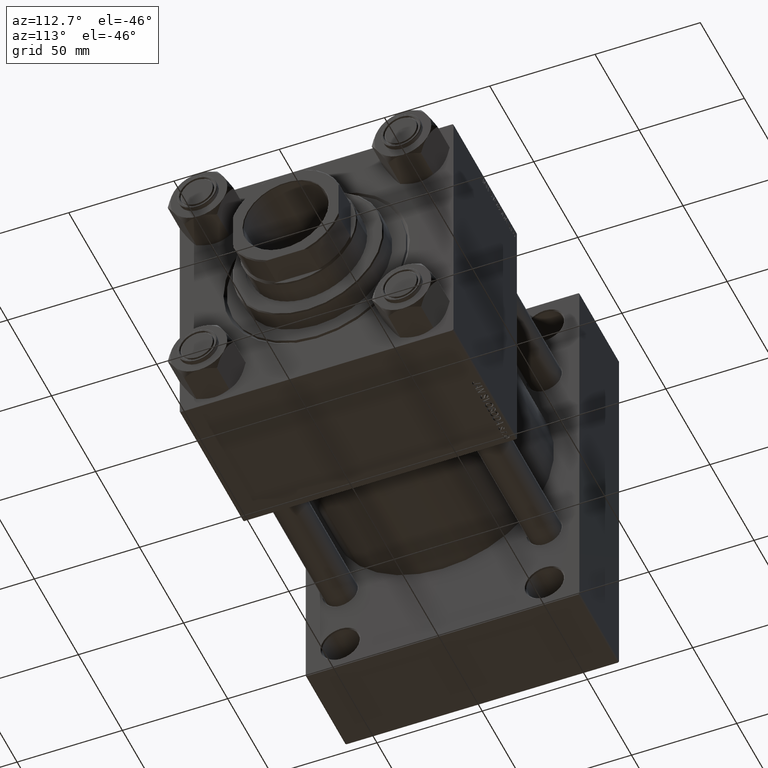
[diagram: clean part render]
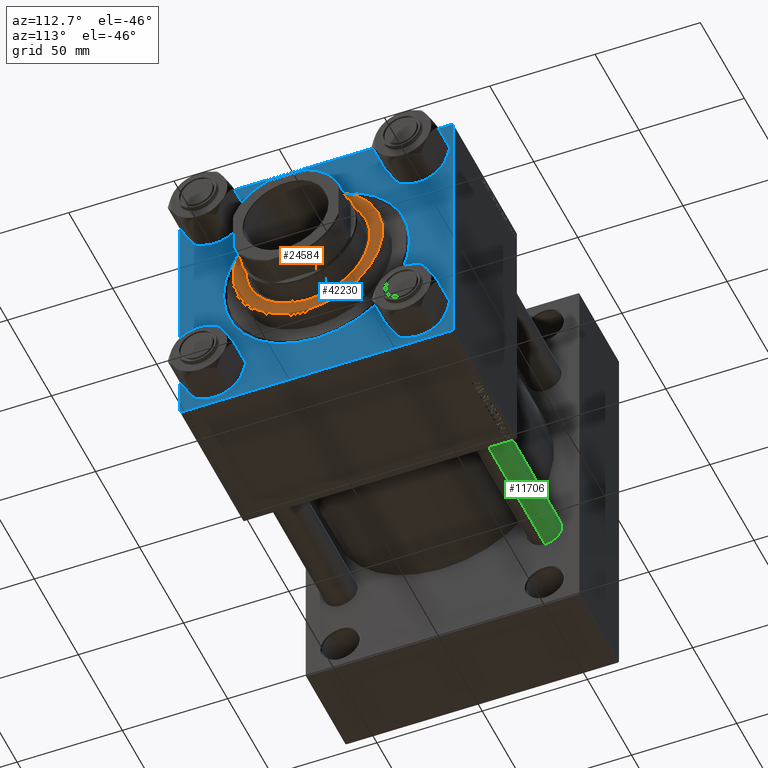
[diagram: same view with three faces highlighted in distinct colors, each labeled with its STEP entity id]
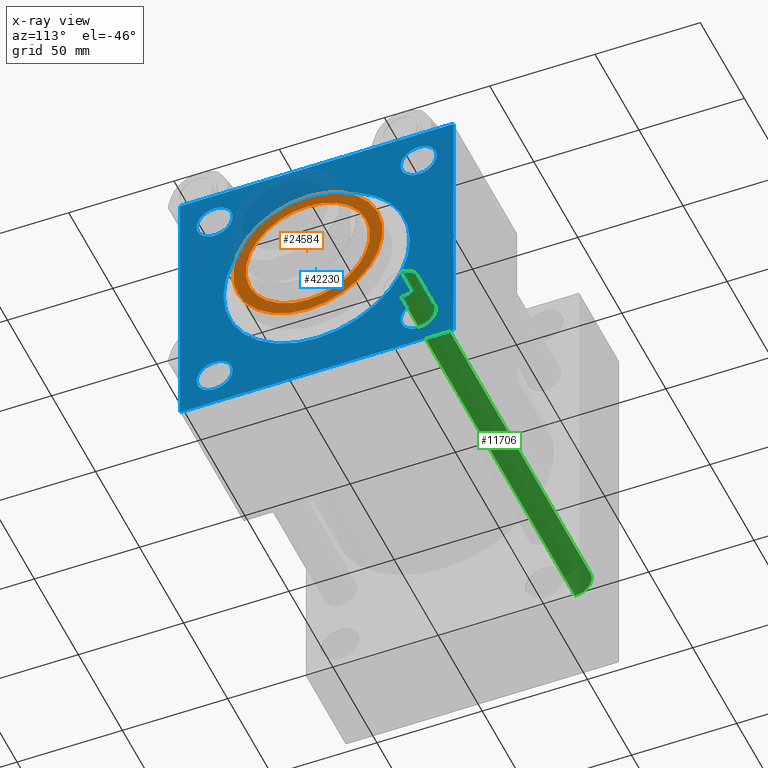
[diagram: x-ray of the same camera — body ghosted, the three highlighted faces saturated]
A machine part, auxiliary view with three faces highlighted in distinct colors.
The next image is the same camera in x-ray (body ghosted, the three faces saturated) — at least one of them is partly hidden behind the body in this view.
Their STEP definitions:

[orange] entity #24584 — the highlighted planar face has unit normal (1, 0, 0).
#1363 = EDGE_LOOP ( 'NONE', ( #15188, #34624 ) ) ;
#3300 = CARTESIAN_POINT ( 'NONE',  ( 0.000000000000000000, 0.000000000000000000, 38.69999999999999574 ) ) ;
#3897 = VERTEX_POINT ( 'NONE', #37579 ) ;
#4317 = CARTESIAN_POINT ( 'NONE',  ( 0.000000000000000000, 0.000000000000000000, 38.69999999999999574 ) ) ;
#7691 = CIRCLE ( 'NONE', #15857, 29.50000000000000355 ) ;
#8905 = DIRECTION ( 'NONE',  ( 1.000000000000000000, 0.000000000000000000, -0.000000000000000000 ) ) ;
#10899 = DIRECTION ( 'NONE',  ( 1.000000000000000000, 0.000000000000000000, 0.000000000000000000 ) ) ;
#11450 = CIRCLE ( 'NONE', #14770, 35.49999999999999289 ) ;
#13091 = CARTESIAN_POINT ( 'NONE',  ( 29.50000000000000355, 0.000000000000000000, 38.69999999999999574 ) ) ;
#13244 = FACE_BOUND ( 'NONE', #1363, .T. ) ;
#14224 = DIRECTION ( 'NONE',  ( 0.000000000000000000, 0.000000000000000000, 1.000000000000000000 ) ) ;
#14770 = AXIS2_PLACEMENT_3D ( 'NONE', #21389, #48961, #41015 ) ;
#15188 = ORIENTED_EDGE ( 'NONE', *, *, #46221, .F. ) ;
#15857 = AXIS2_PLACEMENT_3D ( 'NONE', #33640, #14224, #10899 ) ;
#18966 = EDGE_CURVE ( 'NONE', #35956, #19956, #25681, .T. ) ;
#19361 = AXIS2_PLACEMENT_3D ( 'NONE', #4317, #43390, #8905 ) ;
#19956 = VERTEX_POINT ( 'NONE', #13091 ) ;
#21389 = CARTESIAN_POINT ( 'NONE',  ( 0.000000000000000000, 0.000000000000000000, 38.69999999999999574 ) ) ;
#21793 = CIRCLE ( 'NONE', #40610, 35.49999999999999289 ) ;
#22110 = DIRECTION ( 'NONE',  ( 0.000000000000000000, 0.000000000000000000, 1.000000000000000000 ) ) ;
#23216 = AXIS2_PLACEMENT_3D ( 'NONE', #41490, #22110, #38182 ) ;
#24584 = ADVANCED_FACE ( 'NONE', ( #13244, #32648 ), #39297, .T. ) ;
#25681 = CIRCLE ( 'NONE', #23216, 29.50000000000000355 ) ;
#27527 = EDGE_CURVE ( 'NONE', #28118, #3897, #21793, .T. ) ;
#28118 = VERTEX_POINT ( 'NONE', #34092 ) ;
#30264 = ORIENTED_EDGE ( 'NONE', *, *, #27527, .T. ) ;
#32648 = FACE_OUTER_BOUND ( 'NONE', #42636, .T. ) ;
#33640 = CARTESIAN_POINT ( 'NONE',  ( 0.000000000000000000, 0.000000000000000000, 38.69999999999999574 ) ) ;
#34092 = CARTESIAN_POINT ( 'NONE',  ( -35.49999999999999289, 0.000000000000000000, 38.69999999999999574 ) ) ;
#34624 = ORIENTED_EDGE ( 'NONE', *, *, #18966, .F. ) ;
#35956 = VERTEX_POINT ( 'NONE', #46050 ) ;
#36075 = ORIENTED_EDGE ( 'NONE', *, *, #37435, .T. ) ;
#37435 = EDGE_CURVE ( 'NONE', #3897, #28118, #11450, .T. ) ;
#37579 = CARTESIAN_POINT ( 'NONE',  ( 35.49999999999999289, 4.378112306951787069E-15, 38.69999999999999574 ) ) ;
#38182 = DIRECTION ( 'NONE',  ( 1.000000000000000000, 0.000000000000000000, 0.000000000000000000 ) ) ;
#39297 = PLANE ( 'NONE',  #19361 ) ;
#40610 = AXIS2_PLACEMENT_3D ( 'NONE', #3300, #50300, #45955 ) ;
#41015 = DIRECTION ( 'NONE',  ( 1.000000000000000000, 0.000000000000000000, 0.000000000000000000 ) ) ;
#41490 = CARTESIAN_POINT ( 'NONE',  ( 0.000000000000000000, 0.000000000000000000, 38.69999999999999574 ) ) ;
#42636 = EDGE_LOOP ( 'NONE', ( #30264, #36075 ) ) ;
#43390 = DIRECTION ( 'NONE',  ( 0.000000000000000000, 0.000000000000000000, 1.000000000000000000 ) ) ;
#45955 = DIRECTION ( 'NONE',  ( 1.000000000000000000, 0.000000000000000000, 0.000000000000000000 ) ) ;
#46050 = CARTESIAN_POINT ( 'NONE',  ( -29.50000000000000355, 3.612708057484692393E-15, 38.69999999999999574 ) ) ;
#46221 = EDGE_CURVE ( 'NONE', #19956, #35956, #7691, .T. ) ;
#48961 = DIRECTION ( 'NONE',  ( 0.000000000000000000, 0.000000000000000000, 1.000000000000000000 ) ) ;
#50300 = DIRECTION ( 'NONE',  ( 0.000000000000000000, 0.000000000000000000, 1.000000000000000000 ) ) ;

[blue] entity #42230 — the highlighted planar face has unit normal (-1, 0, 0).
#285 = AXIS2_PLACEMENT_3D ( 'NONE', #41793, #18070, #34398 ) ;
#1060 = AXIS2_PLACEMENT_3D ( 'NONE', #40729, #10082, #37415 ) ;
#2303 = ORIENTED_EDGE ( 'NONE', *, *, #29900, .T. ) ;
#2640 = VERTEX_POINT ( 'NONE', #16012 ) ;
#3147 = AXIS2_PLACEMENT_3D ( 'NONE', #33049, #48640, #25646 ) ;
#3587 = CARTESIAN_POINT ( 'NONE',  ( 188.0000000000000000, 64.50000000000005684, 65.00000000000001421 ) ) ;
#5193 = EDGE_CURVE ( 'NONE', #40763, #6423, #37722, .T. ) ;
#5201 = LINE ( 'NONE', #20308, #21060 ) ;
#5268 = CARTESIAN_POINT ( 'NONE',  ( 188.0000000000000000, 0.000000000000000000, 0.000000000000000000 ) ) ;
#5406 = VECTOR ( 'NONE', #47872, 999.9999999999998863 ) ;
#5477 = CIRCLE ( 'NONE', #21809, 44.25000000000006395 ) ;
#5549 = EDGE_CURVE ( 'NONE', #44247, #46224, #50132, .T. ) ;
#5641 = ORIENTED_EDGE ( 'NONE', *, *, #44129, .T. ) ;
#6307 = CIRCLE ( 'NONE', #27500, 8.500000000000035527 ) ;
#6423 = VERTEX_POINT ( 'NONE', #35667 ) ;
#7155 = VECTOR ( 'NONE', #31180, 1000.000000000000114 ) ;
#8288 = LINE ( 'NONE', #15698, #28538 ) ;
#8843 = EDGE_CURVE ( 'NONE', #24665, #43722, #45225, .T. ) ;
#8942 = EDGE_CURVE ( 'NONE', #50255, #17244, #49321, .T. ) ;
#9063 = CARTESIAN_POINT ( 'NONE',  ( 188.0000000000000000, 65.00000000000002842, -64.49999999999992895 ) ) ;
#9342 = CARTESIAN_POINT ( 'NONE',  ( 188.0000000000000000, 65.00000000000002842, 64.50000000000004263 ) ) ;
#9619 = DIRECTION ( 'NONE',  ( -0.000000000000000000, 0.000000000000000000, 1.000000000000000000 ) ) ;
#9905 = VECTOR ( 'NONE', #17996, 1000.000000000000000 ) ;
#10082 = DIRECTION ( 'NONE',  ( -1.000000000000000000, 0.000000000000000000, -0.000000000000000000 ) ) ;
#10142 = CARTESIAN_POINT ( 'NONE',  ( 188.0000000000000000, 0.000000000000000000, -44.25000000000006395 ) ) ;
#10256 = DIRECTION ( 'NONE',  ( -1.000000000000000000, 0.000000000000000000, -0.000000000000000000 ) ) ;
#10646 = CARTESIAN_POINT ( 'NONE',  ( 188.0000000000000000, -48.44999999999999574, -39.94999999999999574 ) ) ;
#10756 = LINE ( 'NONE', #23531, #7155 ) ;
#11391 = DIRECTION ( 'NONE',  ( -1.000000000000000000, 0.000000000000000000, -0.000000000000000000 ) ) ;
#12059 = VERTEX_POINT ( 'NONE', #9342 ) ;
#12235 = VERTEX_POINT ( 'NONE', #45351 ) ;
#12527 = VERTEX_POINT ( 'NONE', #21303 ) ;
#12761 = LINE ( 'NONE', #44676, #18982 ) ;
#13294 = EDGE_CURVE ( 'NONE', #25260, #12527, #28454, .T. ) ;
#13374 = DIRECTION ( 'NONE',  ( -1.000000000000000000, 0.000000000000000000, -0.000000000000000000 ) ) ;
#13904 = CARTESIAN_POINT ( 'NONE',  ( 188.0000000000000000, -64.99999999999998579, 65.00000000000000000 ) ) ;
#15310 = ORIENTED_EDGE ( 'NONE', *, *, #5549, .T. ) ;
#15352 = VERTEX_POINT ( 'NONE', #47648 ) ;
#15554 = EDGE_CURVE ( 'NONE', #15352, #20175, #5477, .T. ) ;
#15698 = CARTESIAN_POINT ( 'NONE',  ( 188.0000000000000000, 65.00000000000002842, 65.00000000000001421 ) ) ;
#16009 = CARTESIAN_POINT ( 'NONE',  ( 188.0000000000000000, 48.45000000000000995, 48.45000000000001705 ) ) ;
#16012 = CARTESIAN_POINT ( 'NONE',  ( 188.0000000000000000, -48.44999999999999574, 39.94999999999999574 ) ) ;
#16054 = EDGE_CURVE ( 'NONE', #44194, #2640, #46429, .T. ) ;
#16574 = VECTOR ( 'NONE', #33902, 1000.000000000000000 ) ;
#16821 = ORIENTED_EDGE ( 'NONE', *, *, #8942, .T. ) ;
#17244 = VERTEX_POINT ( 'NONE', #40904 ) ;
#17996 = DIRECTION ( 'NONE',  ( 0.000000000000000000, 0.000000000000000000, -1.000000000000000000 ) ) ;
#18012 = ORIENTED_EDGE ( 'NONE', *, *, #5193, .T. ) ;
#18055 = CARTESIAN_POINT ( 'NONE',  ( 188.0000000000000000, -48.44999999999999574, 56.95000000000005969 ) ) ;
#18070 = DIRECTION ( 'NONE',  ( -1.000000000000000000, 0.000000000000000000, -0.000000000000000000 ) ) ;
#18880 = ORIENTED_EDGE ( 'NONE', *, *, #8843, .T. ) ;
#18982 = VECTOR ( 'NONE', #48004, 1000.000000000000000 ) ;
#20175 = VERTEX_POINT ( 'NONE', #10142 ) ;
#20308 = CARTESIAN_POINT ( 'NONE',  ( 188.0000000000000000, 65.00000000000002842, 65.00000000000001421 ) ) ;
#21060 = VECTOR ( 'NONE', #28455, 1000.000000000000000 ) ;
#21303 = CARTESIAN_POINT ( 'NONE',  ( 188.0000000000000000, -64.99999999999998579, 64.49999999999997158 ) ) ;
#21434 = ORIENTED_EDGE ( 'NONE', *, *, #37208, .T. ) ;
#21809 = AXIS2_PLACEMENT_3D ( 'NONE', #23364, #35331, #47341 ) ;
#22439 = ORIENTED_EDGE ( 'NONE', *, *, #46160, .T. ) ;
#22948 = AXIS2_PLACEMENT_3D ( 'NONE', #5268, #32602, #9619 ) ;
#22962 = DIRECTION ( 'NONE',  ( 0.000000000000000000, -0.7071067811865474617, 0.7071067811865474617 ) ) ;
#23225 = AXIS2_PLACEMENT_3D ( 'NONE', #16009, #39982, #47173 ) ;
#23364 = CARTESIAN_POINT ( 'NONE',  ( 188.0000000000000000, 0.000000000000000000, 0.000000000000000000 ) ) ;
#23531 = CARTESIAN_POINT ( 'NONE',  ( 188.0000000000000000, 65.00000000000002842, -64.49999999999992895 ) ) ;
#23710 = VECTOR ( 'NONE', #22962, 1000.000000000000114 ) ;
#23711 = LINE ( 'NONE', #46948, #23710 ) ;
#23899 = CARTESIAN_POINT ( 'NONE',  ( 188.0000000000000000, -64.99999999999998579, -64.49999999999997158 ) ) ;
#24556 = ORIENTED_EDGE ( 'NONE', *, *, #25251, .T. ) ;
#24665 = VERTEX_POINT ( 'NONE', #29326 ) ;
#24698 = FACE_BOUND ( 'NONE', #50367, .T. ) ;
#25099 = DIRECTION ( 'NONE',  ( 0.000000000000000000, 0.000000000000000000, 1.000000000000000000 ) ) ;
#25251 = EDGE_CURVE ( 'NONE', #2640, #44194, #6307, .T. ) ;
#25260 = VERTEX_POINT ( 'NONE', #40685 ) ;
#25646 = DIRECTION ( 'NONE',  ( 0.000000000000000000, 0.000000000000000000, 1.000000000000000000 ) ) ;
#26022 = ORIENTED_EDGE ( 'NONE', *, *, #16054, .T. ) ;
#26739 = CARTESIAN_POINT ( 'NONE',  ( 188.0000000000000000, 48.45000000000000995, -39.94999999999998153 ) ) ;
#26975 = DIRECTION ( 'NONE',  ( 0.000000000000000000, 0.000000000000000000, 1.000000000000000000 ) ) ;
#27362 = EDGE_LOOP ( 'NONE', ( #38664, #39784 ) ) ;
#27500 = AXIS2_PLACEMENT_3D ( 'NONE', #33291, #13374, #28950 ) ;
#28454 = LINE ( 'NONE', #36367, #5406 ) ;
#28455 = DIRECTION ( 'NONE',  ( 0.000000000000000000, -1.000000000000000000, -1.067522139062650425E-16 ) ) ;
#28517 = FACE_BOUND ( 'NONE', #49450, .T. ) ;
#28538 = VECTOR ( 'NONE', #35606, 1000.000000000000000 ) ;
#28950 = DIRECTION ( 'NONE',  ( 0.000000000000000000, 0.000000000000000000, 1.000000000000000000 ) ) ;
#29326 = CARTESIAN_POINT ( 'NONE',  ( 188.0000000000000000, 48.45000000000000995, -56.95000000000005258 ) ) ;
#29900 = EDGE_CURVE ( 'NONE', #12235, #45498, #10756, .T. ) ;
#31064 = AXIS2_PLACEMENT_3D ( 'NONE', #33502, #10256, #25099 ) ;
#31116 = EDGE_CURVE ( 'NONE', #49954, #25260, #5201, .T. ) ;
#31180 = DIRECTION ( 'NONE',  ( -0.000000000000000000, 0.7071067811865474617, 0.7071067811865474617 ) ) ;
#31284 = EDGE_LOOP ( 'NONE', ( #22439, #16821 ) ) ;
#32045 = ORIENTED_EDGE ( 'NONE', *, *, #38013, .T. ) ;
#32167 = AXIS2_PLACEMENT_3D ( 'NONE', #38996, #33917, #37994 ) ;
#32244 = EDGE_CURVE ( 'NONE', #43722, #24665, #49644, .T. ) ;
#32602 = DIRECTION ( 'NONE',  ( -1.000000000000000000, 0.000000000000000000, -0.000000000000000000 ) ) ;
#33049 = CARTESIAN_POINT ( 'NONE',  ( 188.0000000000000000, 48.45000000000000995, -48.45000000000001705 ) ) ;
#33291 = CARTESIAN_POINT ( 'NONE',  ( 188.0000000000000000, -48.44999999999999574, 48.45000000000003126 ) ) ;
#33502 = CARTESIAN_POINT ( 'NONE',  ( 188.0000000000000000, -48.44999999999999574, -48.45000000000003126 ) ) ;
#33902 = DIRECTION ( 'NONE',  ( 0.000000000000000000, 0.7071067811865672237, -0.7071067811865279218 ) ) ;
#33917 = DIRECTION ( 'NONE',  ( -1.000000000000000000, 0.000000000000000000, -0.000000000000000000 ) ) ;
#34398 = DIRECTION ( 'NONE',  ( 0.000000000000000000, 0.000000000000000000, 1.000000000000000000 ) ) ;
#35331 = DIRECTION ( 'NONE',  ( -1.000000000000000000, 0.000000000000000000, -0.000000000000000000 ) ) ;
#35370 = CARTESIAN_POINT ( 'NONE',  ( 188.0000000000000000, -48.44999999999999574, -56.95000000000005969 ) ) ;
#35381 = ORIENTED_EDGE ( 'NONE', *, *, #35653, .F. ) ;
#35606 = DIRECTION ( 'NONE',  ( 0.000000000000000000, 0.000000000000000000, -1.000000000000000000 ) ) ;
#35653 = EDGE_CURVE ( 'NONE', #12059, #45498, #8288, .T. ) ;
#35667 = CARTESIAN_POINT ( 'NONE',  ( 188.0000000000000000, -64.49999999999991473, -65.00000000000001421 ) ) ;
#36038 = CIRCLE ( 'NONE', #38497, 44.25000000000006395 ) ;
#36081 = EDGE_LOOP ( 'NONE', ( #5641, #18012, #40681, #2303, #35381, #21434, #50070, #46403 ) ) ;
#36367 = CARTESIAN_POINT ( 'NONE',  ( 188.0000000000000000, -64.99999999999998579, 64.49999999999997158 ) ) ;
#36434 = FACE_BOUND ( 'NONE', #41506, .T. ) ;
#37208 = EDGE_CURVE ( 'NONE', #12059, #49954, #23711, .T. ) ;
#37415 = DIRECTION ( 'NONE',  ( 0.000000000000000000, 0.000000000000000000, 1.000000000000000000 ) ) ;
#37698 = CARTESIAN_POINT ( 'NONE',  ( 188.0000000000000000, 48.45000000000000995, 56.95000000000005258 ) ) ;
#37722 = LINE ( 'NONE', #38474, #16574 ) ;
#37994 = DIRECTION ( 'NONE',  ( 0.000000000000000000, 0.000000000000000000, 1.000000000000000000 ) ) ;
#38013 = EDGE_CURVE ( 'NONE', #46224, #44247, #48198, .T. ) ;
#38301 = CARTESIAN_POINT ( 'NONE',  ( 188.0000000000000000, -48.44999999999999574, 48.45000000000003126 ) ) ;
#38474 = CARTESIAN_POINT ( 'NONE',  ( 188.0000000000000000, -64.49999999999991473, -65.00000000000001421 ) ) ;
#38497 = AXIS2_PLACEMENT_3D ( 'NONE', #46639, #11391, #26975 ) ;
#38664 = ORIENTED_EDGE ( 'NONE', *, *, #40666, .T. ) ;
#38996 = CARTESIAN_POINT ( 'NONE',  ( 188.0000000000000000, 48.45000000000000995, -48.45000000000001705 ) ) ;
#39051 = DIRECTION ( 'NONE',  ( 0.000000000000000000, 0.000000000000000000, 1.000000000000000000 ) ) ;
#39754 = FACE_OUTER_BOUND ( 'NONE', #36081, .T. ) ;
#39784 = ORIENTED_EDGE ( 'NONE', *, *, #15554, .T. ) ;
#39982 = DIRECTION ( 'NONE',  ( -1.000000000000000000, 0.000000000000000000, -0.000000000000000000 ) ) ;
#40249 = FACE_BOUND ( 'NONE', #27362, .T. ) ;
#40666 = EDGE_CURVE ( 'NONE', #20175, #15352, #36038, .T. ) ;
#40681 = ORIENTED_EDGE ( 'NONE', *, *, #41998, .F. ) ;
#40685 = CARTESIAN_POINT ( 'NONE',  ( 188.0000000000000000, -64.49999999999997158, 65.00000000000000000 ) ) ;
#40729 = CARTESIAN_POINT ( 'NONE',  ( 188.0000000000000000, -48.44999999999999574, -48.45000000000003126 ) ) ;
#40763 = VERTEX_POINT ( 'NONE', #23899 ) ;
#40904 = CARTESIAN_POINT ( 'NONE',  ( 188.0000000000000000, 48.45000000000000995, 39.94999999999998153 ) ) ;
#41506 = EDGE_LOOP ( 'NONE', ( #15310, #32045 ) ) ;
#41793 = CARTESIAN_POINT ( 'NONE',  ( 188.0000000000000000, 48.45000000000000995, 48.45000000000001705 ) ) ;
#41998 = EDGE_CURVE ( 'NONE', #12235, #6423, #12761, .T. ) ;
#42230 = ADVANCED_FACE ( 'NONE', ( #36434, #28517, #44102, #24698, #40249, #39754 ), #48438, .F. ) ;
#42249 = ORIENTED_EDGE ( 'NONE', *, *, #32244, .T. ) ;
#43722 = VERTEX_POINT ( 'NONE', #26739 ) ;
#44102 = FACE_BOUND ( 'NONE', #31284, .T. ) ;
#44129 = EDGE_CURVE ( 'NONE', #12527, #40763, #48903, .T. ) ;
#44194 = VERTEX_POINT ( 'NONE', #18055 ) ;
#44247 = VERTEX_POINT ( 'NONE', #35370 ) ;
#44345 = CIRCLE ( 'NONE', #285, 8.500000000000035527 ) ;
#44676 = CARTESIAN_POINT ( 'NONE',  ( 188.0000000000000000, 65.00000000000002842, -64.99999999999998579 ) ) ;
#45225 = CIRCLE ( 'NONE', #32167, 8.500000000000035527 ) ;
#45351 = CARTESIAN_POINT ( 'NONE',  ( 188.0000000000000000, 64.49999999999997158, -64.99999999999998579 ) ) ;
#45498 = VERTEX_POINT ( 'NONE', #9063 ) ;
#46160 = EDGE_CURVE ( 'NONE', #17244, #50255, #44345, .T. ) ;
#46224 = VERTEX_POINT ( 'NONE', #10646 ) ;
#46403 = ORIENTED_EDGE ( 'NONE', *, *, #13294, .T. ) ;
#46429 = CIRCLE ( 'NONE', #48024, 8.500000000000035527 ) ;
#46639 = CARTESIAN_POINT ( 'NONE',  ( 188.0000000000000000, 0.000000000000000000, 0.000000000000000000 ) ) ;
#46728 = DIRECTION ( 'NONE',  ( -1.000000000000000000, 0.000000000000000000, -0.000000000000000000 ) ) ;
#46948 = CARTESIAN_POINT ( 'NONE',  ( 188.0000000000000000, 64.50000000000005684, 65.00000000000001421 ) ) ;
#47173 = DIRECTION ( 'NONE',  ( 0.000000000000000000, 0.000000000000000000, 1.000000000000000000 ) ) ;
#47341 = DIRECTION ( 'NONE',  ( 0.000000000000000000, 0.000000000000000000, 1.000000000000000000 ) ) ;
#47648 = CARTESIAN_POINT ( 'NONE',  ( 188.0000000000000000, 5.419062086227046872E-15, 44.25000000000006395 ) ) ;
#47872 = DIRECTION ( 'NONE',  ( -0.000000000000000000, -0.7071067811865376918, -0.7071067811865574537 ) ) ;
#48004 = DIRECTION ( 'NONE',  ( 0.000000000000000000, -1.000000000000000000, -2.135044278125300850E-16 ) ) ;
#48024 = AXIS2_PLACEMENT_3D ( 'NONE', #38301, #46728, #39051 ) ;
#48198 = CIRCLE ( 'NONE', #31064, 8.500000000000035527 ) ;
#48438 = PLANE ( 'NONE',  #22948 ) ;
#48640 = DIRECTION ( 'NONE',  ( -1.000000000000000000, 0.000000000000000000, -0.000000000000000000 ) ) ;
#48903 = LINE ( 'NONE', #13904, #9905 ) ;
#49321 = CIRCLE ( 'NONE', #23225, 8.500000000000035527 ) ;
#49450 = EDGE_LOOP ( 'NONE', ( #18880, #42249 ) ) ;
#49644 = CIRCLE ( 'NONE', #3147, 8.500000000000035527 ) ;
#49954 = VERTEX_POINT ( 'NONE', #3587 ) ;
#50070 = ORIENTED_EDGE ( 'NONE', *, *, #31116, .T. ) ;
#50132 = CIRCLE ( 'NONE', #1060, 8.500000000000035527 ) ;
#50255 = VERTEX_POINT ( 'NONE', #37698 ) ;
#50367 = EDGE_LOOP ( 'NONE', ( #24556, #26022 ) ) ;

[green] entity #11706 — the highlighted cylindrical surface (edge-blend (fillet) strip) has radius 8 mm, axis along (-1, 0, 0).
#299 = VECTOR ( 'NONE', #9672, 1000.000000000000000 ) ;
#754 = CIRCLE ( 'NONE', #29314, 8.000000000000000000 ) ;
#1736 = DIRECTION ( 'NONE',  ( -1.000000000000000000, 0.000000000000000000, 0.000000000000000000 ) ) ;
#1987 = DIRECTION ( 'NONE',  ( -0.000000000000000000, -0.000000000000000000, -1.000000000000000000 ) ) ;
#2320 = CARTESIAN_POINT ( 'NONE',  ( 8.000000000000000000, 9.797174393178825657E-16, 198.0000000000000000 ) ) ;
#2428 = DIRECTION ( 'NONE',  ( 0.000000000000000000, 0.000000000000000000, -1.000000000000000000 ) ) ;
#3371 = DIRECTION ( 'NONE',  ( 1.000000000000000000, 0.000000000000000000, 0.000000000000000000 ) ) ;
#3877 = CARTESIAN_POINT ( 'NONE',  ( 0.000000000000000000, 0.000000000000000000, 0.5000000000000559552 ) ) ;
#5065 = FACE_OUTER_BOUND ( 'NONE', #15119, .T. ) ;
#6173 = AXIS2_PLACEMENT_3D ( 'NONE', #31207, #1987, #1736 ) ;
#7404 = EDGE_CURVE ( 'NONE', #47629, #40543, #12754, .T. ) ;
#7771 = ORIENTED_EDGE ( 'NONE', *, *, #7404, .T. ) ;
#8280 = VERTEX_POINT ( 'NONE', #35986 ) ;
#9672 = DIRECTION ( 'NONE',  ( -0.000000000000000000, -0.000000000000000000, -1.000000000000000000 ) ) ;
#11706 = ADVANCED_FACE ( 'NONE', ( #5065 ), #44404, .T. ) ;
#12754 = LINE ( 'NONE', #24506, #299 ) ;
#14328 = DIRECTION ( 'NONE',  ( -0.000000000000000000, -0.000000000000000000, -1.000000000000000000 ) ) ;
#15119 = EDGE_LOOP ( 'NONE', ( #18621, #47386, #7771, #34678 ) ) ;
#17043 = CARTESIAN_POINT ( 'NONE',  ( -8.000000000000000000, 0.000000000000000000, 0.5000000000000559552 ) ) ;
#18315 = EDGE_CURVE ( 'NONE', #40543, #8280, #45213, .T. ) ;
#18621 = ORIENTED_EDGE ( 'NONE', *, *, #39056, .F. ) ;
#22809 = DIRECTION ( 'NONE',  ( -0.000000000000000000, -0.000000000000000000, 1.000000000000000000 ) ) ;
#24506 = CARTESIAN_POINT ( 'NONE',  ( -8.000000000000000000, 0.000000000000000000, 198.0000000000000000 ) ) ;
#26193 = CARTESIAN_POINT ( 'NONE',  ( 0.000000000000000000, 0.000000000000000000, 197.4999999999999716 ) ) ;
#29314 = AXIS2_PLACEMENT_3D ( 'NONE', #26193, #2428, #49437 ) ;
#31207 = CARTESIAN_POINT ( 'NONE',  ( 0.000000000000000000, 0.000000000000000000, 198.0000000000000000 ) ) ;
#32159 = AXIS2_PLACEMENT_3D ( 'NONE', #3877, #22809, #3371 ) ;
#32670 = CARTESIAN_POINT ( 'NONE',  ( 8.000000000000000000, 9.797174393178825657E-16, 197.4999999999999716 ) ) ;
#34678 = ORIENTED_EDGE ( 'NONE', *, *, #18315, .T. ) ;
#34797 = EDGE_CURVE ( 'NONE', #39424, #47629, #754, .T. ) ;
#35971 = VECTOR ( 'NONE', #14328, 1000.000000000000000 ) ;
#35986 = CARTESIAN_POINT ( 'NONE',  ( 8.000000000000000000, 9.797174393178825657E-16, 0.5000000000000559552 ) ) ;
#37561 = LINE ( 'NONE', #2320, #35971 ) ;
#39056 = EDGE_CURVE ( 'NONE', #39424, #8280, #37561, .T. ) ;
#39424 = VERTEX_POINT ( 'NONE', #32670 ) ;
#40543 = VERTEX_POINT ( 'NONE', #17043 ) ;
#40962 = CARTESIAN_POINT ( 'NONE',  ( -8.000000000000000000, 0.000000000000000000, 197.4999999999999716 ) ) ;
#44404 = CYLINDRICAL_SURFACE ( 'NONE', #6173, 8.000000000000000000 ) ;
#45213 = CIRCLE ( 'NONE', #32159, 8.000000000000000000 ) ;
#47386 = ORIENTED_EDGE ( 'NONE', *, *, #34797, .T. ) ;
#47629 = VERTEX_POINT ( 'NONE', #40962 ) ;
#49437 = DIRECTION ( 'NONE',  ( 1.000000000000000000, 0.000000000000000000, 0.000000000000000000 ) ) ;